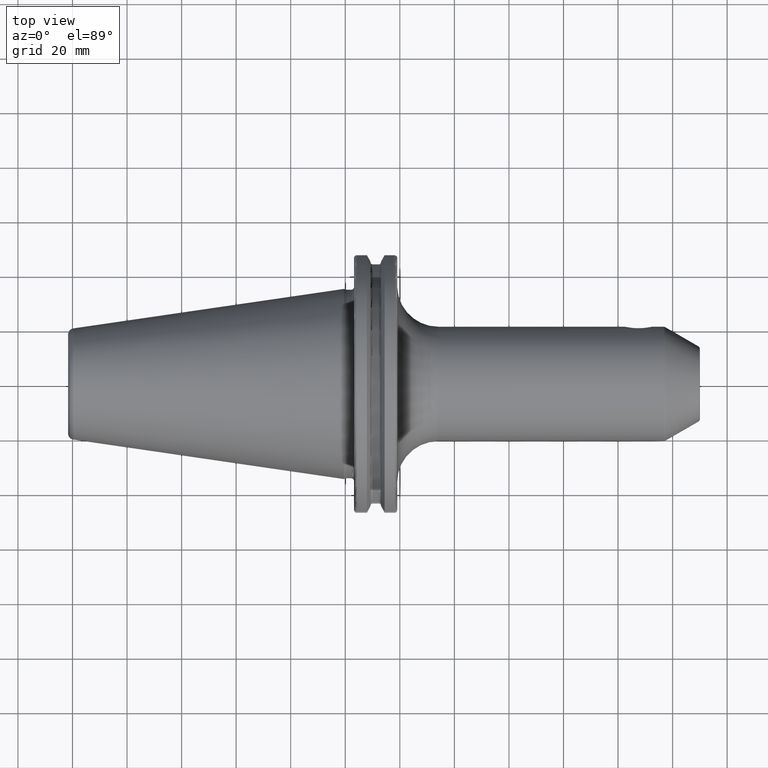
[diagram: clean part render]
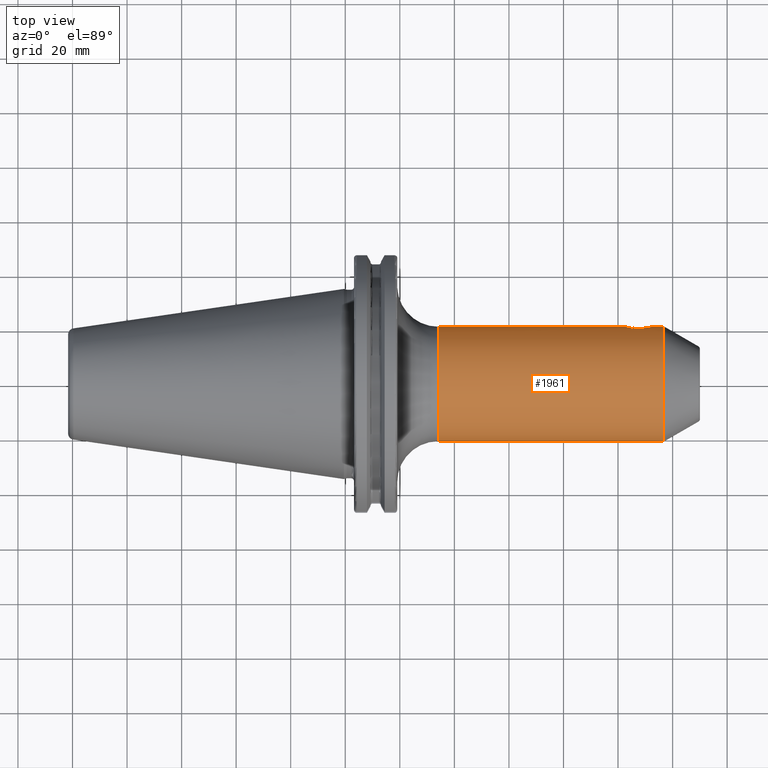
[diagram: same view with one face highlighted and labeled with its STEP entity id]
A machine part, top view. The second image highlights one B-rep face of the part: STEP entity #1961.
In plain terms, the highlighted cylindrical surface (partial cylindrical patch) has radius 21 mm, axis along (1, 0, 0).
Its self-contained STEP definition (entity closure, byte-faithful):
#200=CARTESIAN_POINT('',(1.126E2,2.1E1,0.E0));
#201=CARTESIAN_POINT('',(1.126E2,2.1E1,2.623376702258E-1));
#202=CARTESIAN_POINT('',(1.125601607628E2,2.099026924720E1,7.811625122680E-1));
#203=CARTESIAN_POINT('',(1.123794978933E2,2.094712789705E1,1.552033353512E0));
#204=CARTESIAN_POINT('',(1.120838670670E2,2.087973807864E1,2.280904952248E0));
#205=CARTESIAN_POINT('',(1.116832281895E2,2.079485166141E1,2.951486900849E0));
#206=CARTESIAN_POINT('',(1.111890711669E2,2.070035424808E1,3.550250839451E0));
#207=CARTESIAN_POINT('',(1.105984409981E2,2.060240851364E1,4.076937191771E0));
#208=CARTESIAN_POINT('',(1.099254700237E2,2.051119661626E1,4.510066366135E0));
#209=CARTESIAN_POINT('',(1.091891788667E2,2.043645791269E1,4.834873162072E0));
#210=CARTESIAN_POINT('',(1.083890799211E2,2.038501341118E1,5.045589592333E0));
#211=CARTESIAN_POINT('',(1.075301552779E2,2.036511064583E1,5.124558008627E0));
#212=CARTESIAN_POINT('',(1.066694423322E2,2.038249536009E1,5.055653983941E0));
#213=CARTESIAN_POINT('',(1.058642377168E2,2.043202503903E1,4.853428960728E0));
#214=CARTESIAN_POINT('',(1.051197735190E2,2.050578700947E1,4.534470200162E0));
#215=CARTESIAN_POINT('',(1.044368912692E2,2.059701933008E1,4.104039356690E0));
#216=CARTESIAN_POINT('',(1.038363805272E2,2.069575454629E1,3.577032393264E0));
#217=CARTESIAN_POINT('',(1.033337933261E2,2.079137791124E1,2.976136075316E0));
#218=CARTESIAN_POINT('',(1.029255211603E2,2.087764383266E1,2.300558330498E0));
#219=CARTESIAN_POINT('',(1.026246505903E2,2.094614733752E1,1.566204122782E0));
#220=CARTESIAN_POINT('',(1.024405981130E2,2.099008253586E1,7.885310233556E-1));
#221=CARTESIAN_POINT('',(1.024E2,2.1E1,2.648719973202E-1));
#222=CARTESIAN_POINT('',(1.024E2,2.1E1,0.E0));
#224=CARTESIAN_POINT('',(1.167320508076E2,0.E0,0.E0));
#225=DIRECTION('',(-1.E0,0.E0,0.E0));
#226=DIRECTION('',(0.E0,-1.E0,0.E0));
#227=AXIS2_PLACEMENT_3D('',#224,#225,#226);
#229=CARTESIAN_POINT('',(3.405E1,0.E0,0.E0));
#230=DIRECTION('',(1.E0,0.E0,0.E0));
#231=DIRECTION('',(0.E0,1.E0,0.E0));
#232=AXIS2_PLACEMENT_3D('',#229,#230,#231);
#392=DIRECTION('',(-9.999999999925E-1,-4.883076305295E-11,3.873354785282E-6));
#393=VECTOR('',#392,6.835000000051E1);
#394=CARTESIAN_POINT('',(1.024E2,2.1E1,0.E0));
#395=LINE('',#394,#393);
#401=DIRECTION('',(-1.E0,0.E0,-1.923258739675E-13));
#402=VECTOR('',#401,8.268205080757E1);
#403=CARTESIAN_POINT('',(1.167320508076E2,-2.1E1,1.009245380515E-11));
#404=LINE('',#403,#402);
#410=DIRECTION('',(-1.E0,0.E0,2.442948453887E-12));
#411=VECTOR('',#410,4.132050807569E0);
#412=CARTESIAN_POINT('',(1.167320508076E2,2.1E1,-1.009309778315E-11));
#413=LINE('',#412,#411);
#1640=CARTESIAN_POINT('',(1.126E2,2.1E1,0.E0));
#1642=VERTEX_POINT('',#1640);
#1644=CARTESIAN_POINT('',(1.024E2,2.1E1,0.E0));
#1646=VERTEX_POINT('',#1644);
#1653=CARTESIAN_POINT('',(3.405E1,-2.1E1,0.E0));
#1654=CARTESIAN_POINT('',(3.405E1,2.1E1,0.E0));
#1655=VERTEX_POINT('',#1653);
#1656=VERTEX_POINT('',#1654);
#1659=CARTESIAN_POINT('',(1.167320508076E2,2.1E1,0.E0));
#1660=CARTESIAN_POINT('',(1.167320508076E2,-2.1E1,0.E0));
#1661=VERTEX_POINT('',#1659);
#1662=VERTEX_POINT('',#1660);
#1943=CARTESIAN_POINT('',(1.35025E1,0.E0,0.E0));
#1944=DIRECTION('',(1.E0,0.E0,0.E0));
#1945=DIRECTION('',(0.E0,-1.E0,0.E0));
#1946=AXIS2_PLACEMENT_3D('',#1943,#1944,#1945);
#1947=CYLINDRICAL_SURFACE('',#1946,2.1E1);
#1949=ORIENTED_EDGE('',*,*,#1948,.F.);
#1951=ORIENTED_EDGE('',*,*,#1950,.F.);
#1953=ORIENTED_EDGE('',*,*,#1952,.F.);
#1955=ORIENTED_EDGE('',*,*,#1954,.T.);
#1956=ORIENTED_EDGE('',*,*,#1937,.F.);
#1958=ORIENTED_EDGE('',*,*,#1957,.F.);
#1959=EDGE_LOOP('',(#1949,#1951,#1953,#1955,#1956,#1958));
#1960=FACE_OUTER_BOUND('',#1959,.F.);
#1961=ADVANCED_FACE('',(#1960),#1947,.T.);
#223=B_SPLINE_CURVE_WITH_KNOTS('',3,(#200,#201,#202,#203,#204,#205,#206,#207,
#208,#209,#210,#211,#212,#213,#214,#215,#216,#217,#218,#219,#220,#221,#222),
.UNSPECIFIED.,.F.,.F.,(4,1,1,1,1,1,1,1,1,1,1,1,1,1,1,1,1,1,1,1,4),(0.E0,5.E-2,
1.E-1,1.5E-1,2.E-1,2.5E-1,3.E-1,3.5E-1,4.E-1,4.5E-1,5.E-1,5.5E-1,6.E-1,6.5E-1,
7.E-1,7.5E-1,8.E-1,8.5E-1,9.E-1,9.5E-1,1.E0),.UNSPECIFIED.);
#228=CIRCLE('',#227,2.1E1);
#233=CIRCLE('',#232,2.1E1);
#1937=EDGE_CURVE('',#1656,#1655,#233,.T.);
#1948=EDGE_CURVE('',#1642,#1646,#223,.T.);
#1950=EDGE_CURVE('',#1661,#1642,#413,.T.);
#1952=EDGE_CURVE('',#1662,#1661,#228,.T.);
#1954=EDGE_CURVE('',#1662,#1655,#404,.T.);
#1957=EDGE_CURVE('',#1646,#1656,#395,.T.);